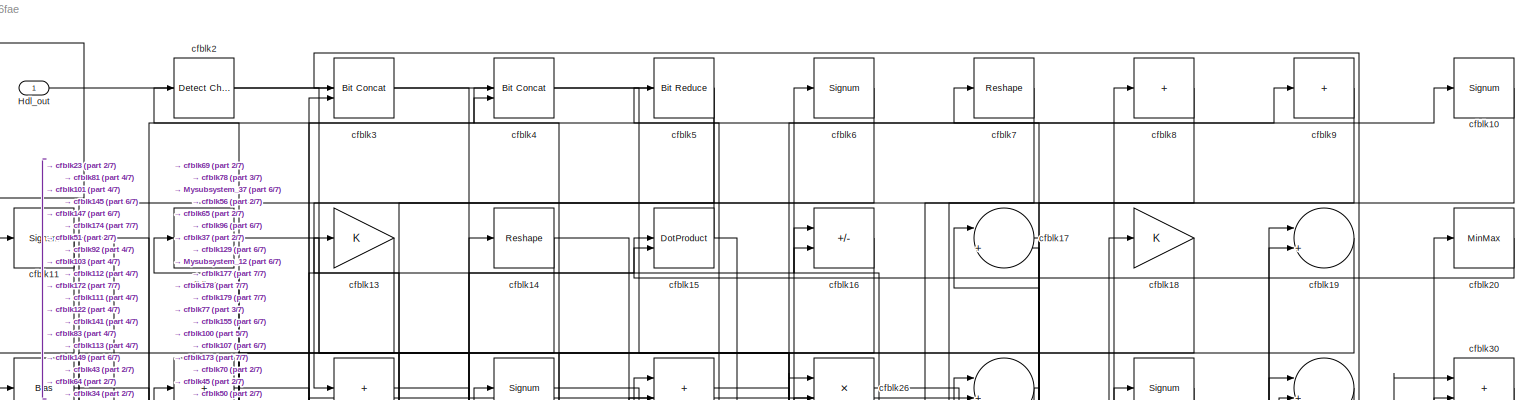
[diagram: root canvas - part 1/7, full width, top band]
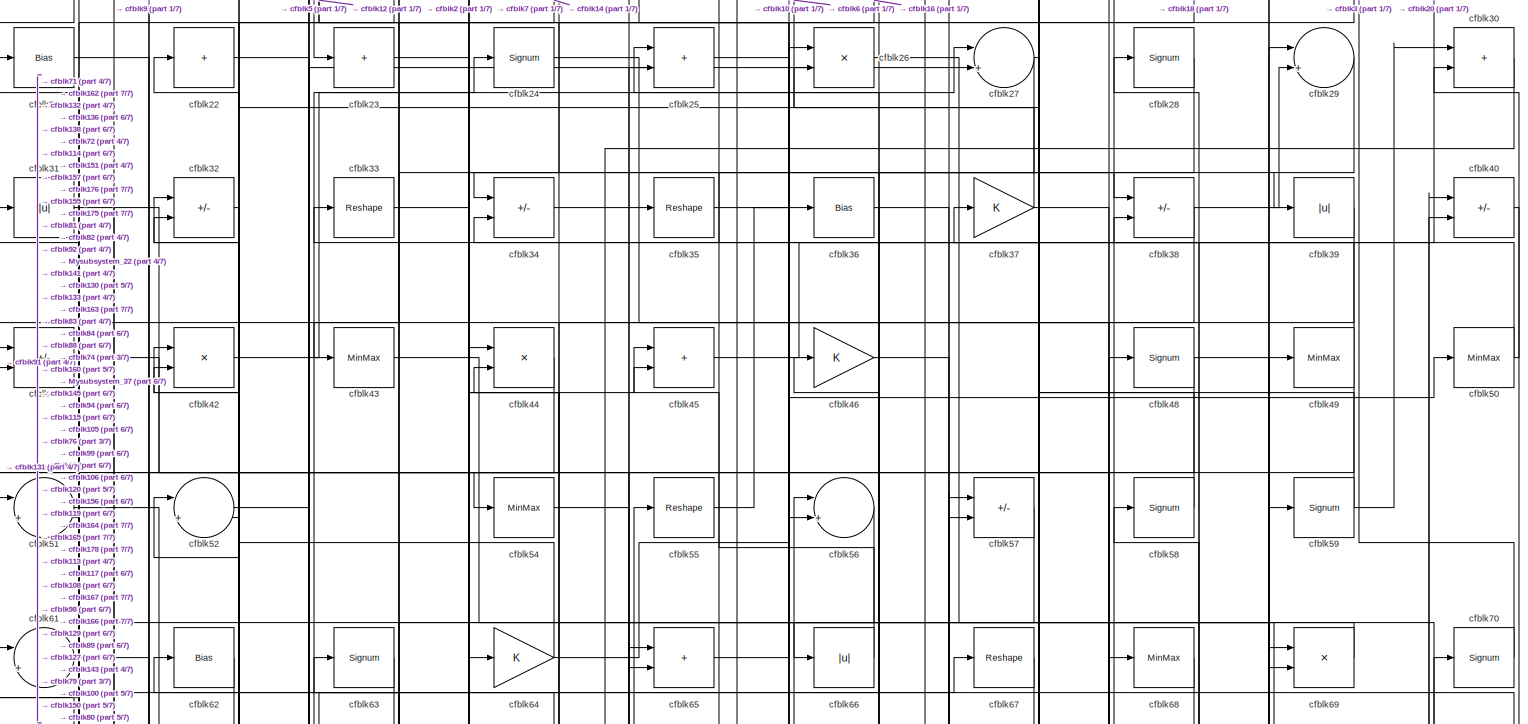
[diagram: root canvas - part 2/7, full width, top band]
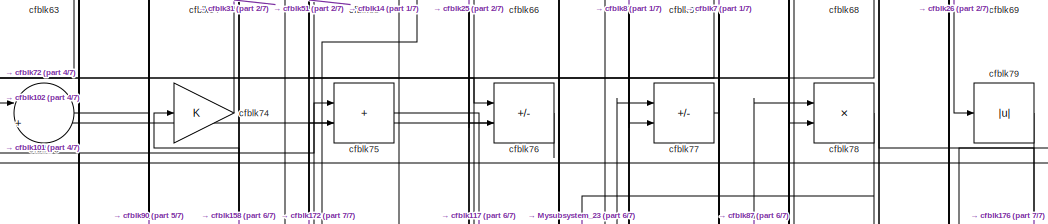
[diagram: root canvas - part 3/7, central region]
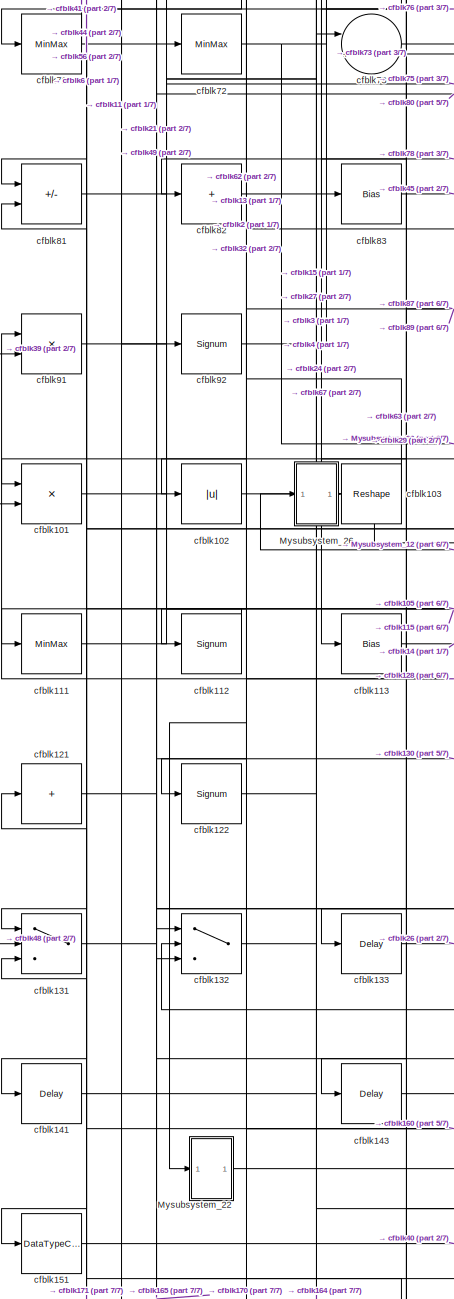
[diagram: root canvas - part 4/7, middle left region]
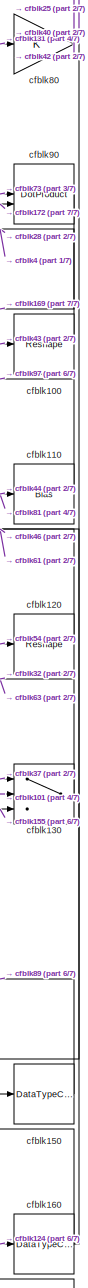
[diagram: root canvas - part 5/7, middle right region]
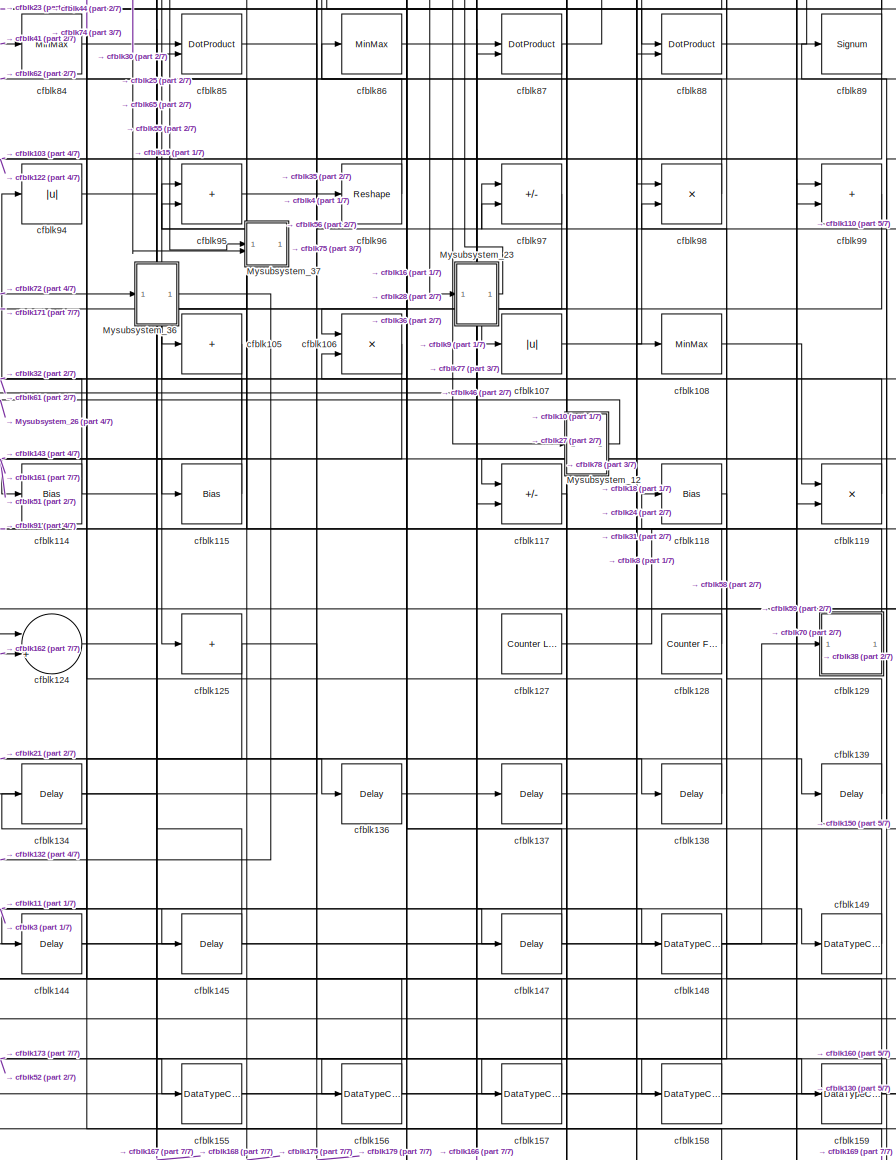
[diagram: root canvas - part 6/7, bottom center region]
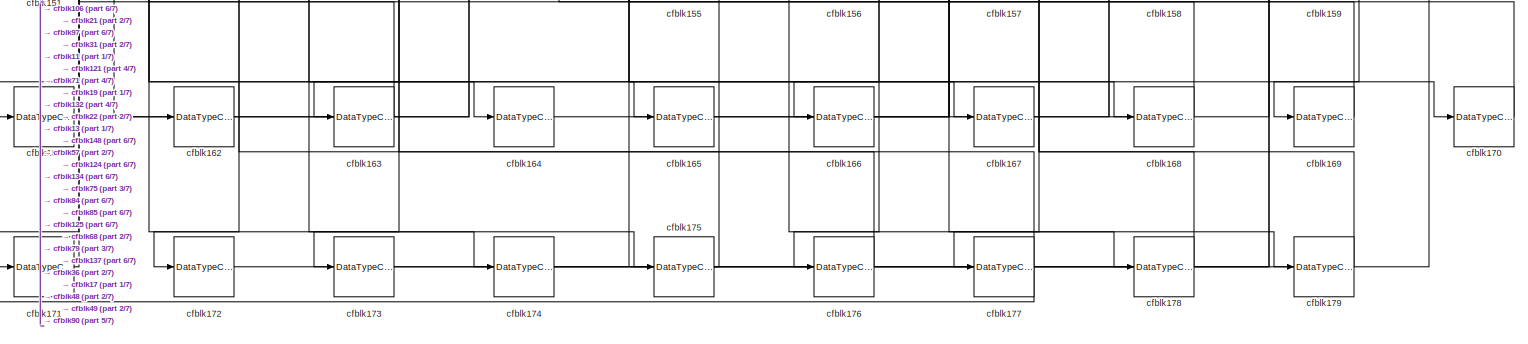
[diagram: root canvas - part 7/7, full width, bottom band]
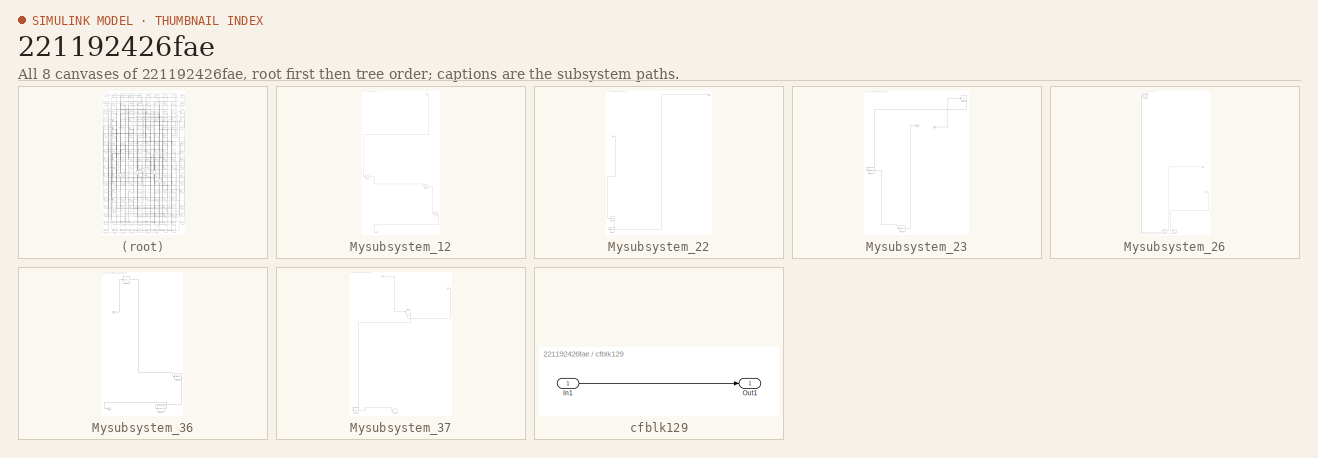
[diagram: thumbnail index - all 8 canvases of the model, root first then tree order]
MODEL slx_221192426fae
KIND model
CONFIG AbsTol = auto
CONFIG EnableMultiTasking = off
CONFIG FixedStep = auto
CONFIG MaxStep = auto
CONFIG MinStep = auto
CONFIG RelTol = 1e-3
CONFIG SampleTimeConstraint = Unconstrained
CONFIG SolverName = VariableStepAuto
CONFIG StartTime = 0.0
CONFIG StopTime = 10.0
BLOCK [Outport] Hdl_out
  OutDataTypeStr = uint8
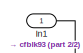
[diagram: Mysubsystem_12 - part 1/2, top right region]
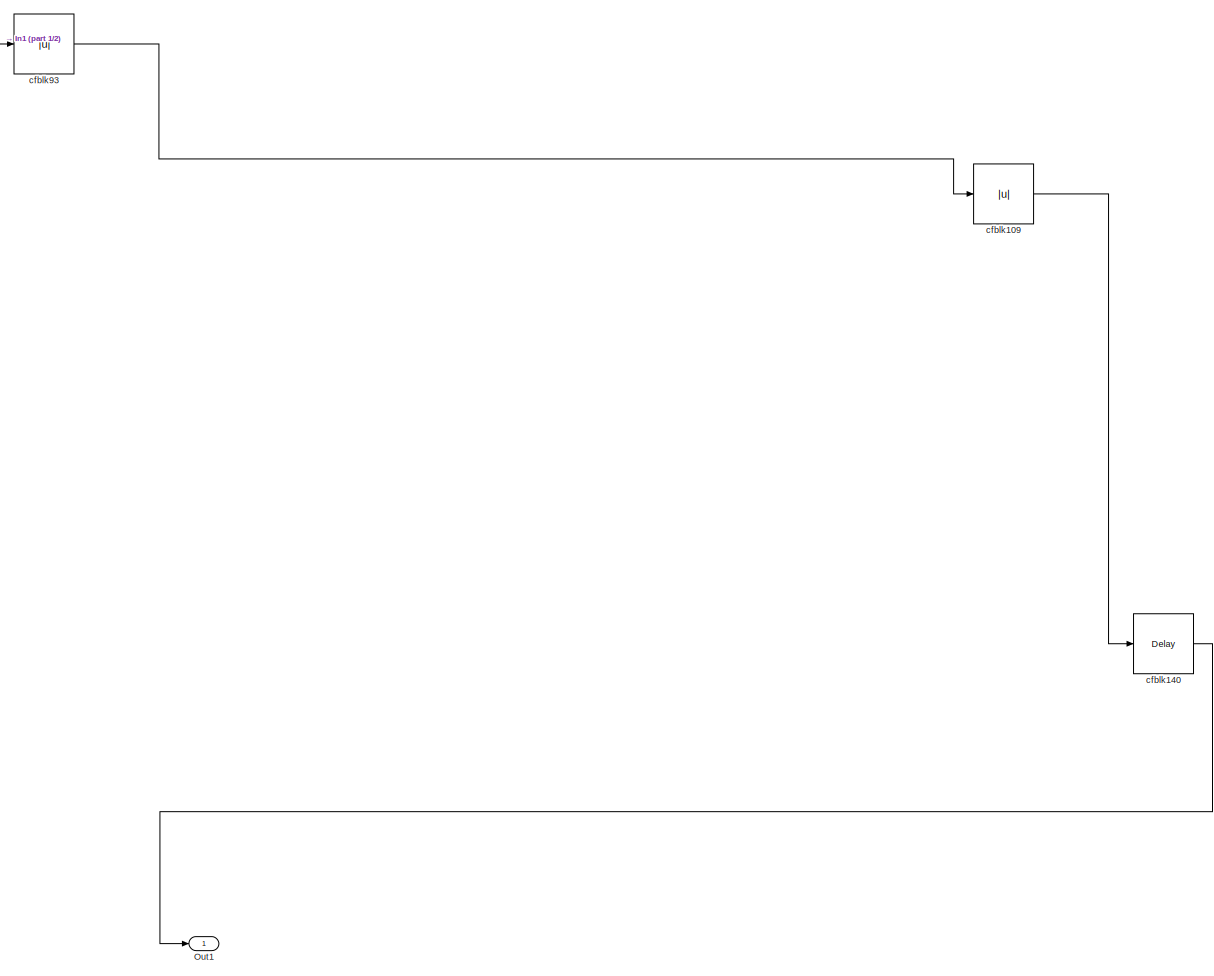
[diagram: Mysubsystem_12 - part 2/2, full width, bottom band]
BLOCK [SubSystem] Mysubsystem_12
  RTWFcnName = Mysubsystem_12
  RTWFcnNameOpts = User specified
  RTWFileNameOpts = Use function name
  RTWSystemCode = Reusable function
  TreatAsAtomicUnit = on
BLOCK [Inport] Mysubsystem_12/In1
BLOCK [Outport] Mysubsystem_12/Out1
BLOCK [Abs] Mysubsystem_12/cfblk109
  SaturateOnIntegerOverflow = off
BLOCK [Delay] Mysubsystem_12/cfblk140
  InputPortMap = u0
  SampleTime = 1
BLOCK [Abs] Mysubsystem_12/cfblk93
  SaturateOnIntegerOverflow = off
BLOCK [SubSystem] Mysubsystem_22
  RTWFcnName = Mysubsystem_22
  RTWFcnNameOpts = User specified
  RTWFileNameOpts = Use function name
  RTWSystemCode = Reusable function
  TreatAsAtomicUnit = on
BLOCK [Inport] Mysubsystem_22/In1
BLOCK [Outport] Mysubsystem_22/Out1
BLOCK [Delay] Mysubsystem_22/cfblk142
  InputPortMap = u0
  SampleTime = 1
BLOCK [DataTypeConversion] Mysubsystem_22/cfblk152
  OutDataTypeStr = uint8
  RndMeth = Floor
  SaturateOnIntegerOverflow = off
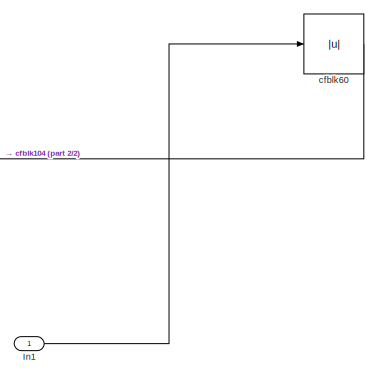
[diagram: Mysubsystem_23 - part 1/2, top right region]
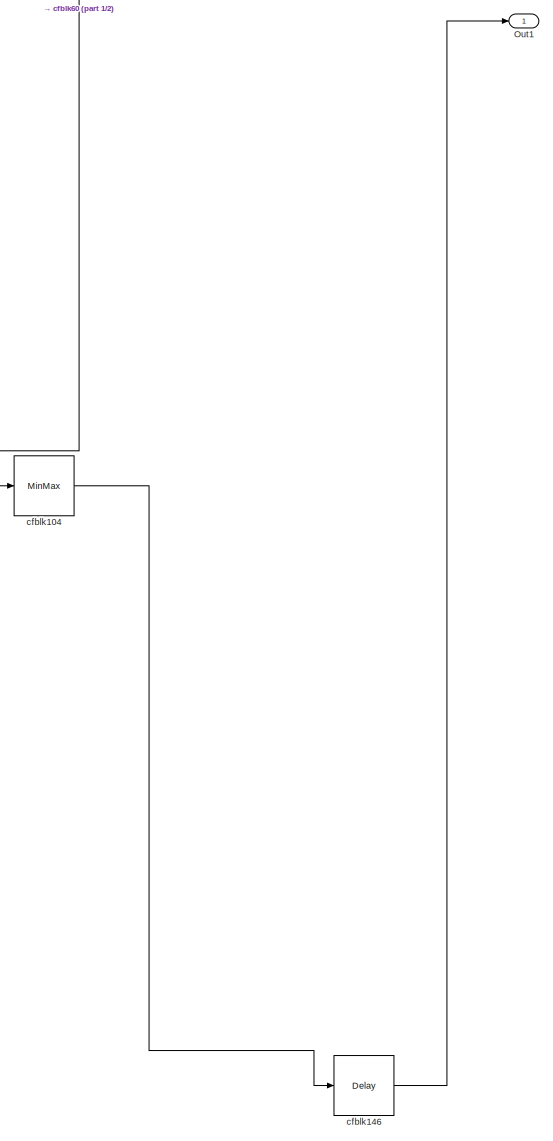
[diagram: Mysubsystem_23 - part 2/2, left side, full height]
BLOCK [SubSystem] Mysubsystem_23
  RTWFcnName = Mysubsystem_23
  RTWFcnNameOpts = User specified
  RTWFileNameOpts = Use function name
  RTWSystemCode = Reusable function
  TreatAsAtomicUnit = on
BLOCK [Inport] Mysubsystem_23/In1
BLOCK [Outport] Mysubsystem_23/Out1
BLOCK [MinMax] Mysubsystem_23/cfblk104
BLOCK [Delay] Mysubsystem_23/cfblk146
  InputPortMap = u0
  SampleTime = 1
BLOCK [Abs] Mysubsystem_23/cfblk60
  SaturateOnIntegerOverflow = off
BLOCK [SubSystem] Mysubsystem_26
  RTWFcnName = Mysubsystem_26
  RTWFcnNameOpts = User specified
  RTWFileNameOpts = Use function name
  RTWSystemCode = Reusable function
  TreatAsAtomicUnit = on
BLOCK [Inport] Mysubsystem_26/In1
BLOCK [Outport] Mysubsystem_26/Out1
BLOCK [ArithShift] Mysubsystem_26/cfblk1
  BitShiftNumber = 8
  InputPortMap = u0
BLOCK [DataTypeConversion] Mysubsystem_26/cfblk153
  OutDataTypeStr = uint8
  RndMeth = Floor
  SaturateOnIntegerOverflow = off
BLOCK [DataTypeConversion] Mysubsystem_26/cfblk154
  OutDataTypeStr = uint8
  RndMeth = Floor
  SaturateOnIntegerOverflow = off
BLOCK [SubSystem] Mysubsystem_36
  RTWFcnName = Mysubsystem_36
  RTWFcnNameOpts = User specified
  RTWFileNameOpts = Use function name
  RTWSystemCode = Reusable function
  TreatAsAtomicUnit = on
BLOCK [Inport] Mysubsystem_36/In1
BLOCK [Outport] Mysubsystem_36/Out1
BLOCK [MinMax] Mysubsystem_36/cfblk116
BLOCK [Delay] Mysubsystem_36/cfblk135
  InputPortMap = u0
  SampleTime = 1
BLOCK [Abs] Mysubsystem_36/cfblk53
  SaturateOnIntegerOverflow = off
BLOCK [SubSystem] Mysubsystem_37
  RTWFcnName = Mysubsystem_37
  RTWFcnNameOpts = User specified
  RTWFileNameOpts = Use function name
  RTWSystemCode = Reusable function
  TreatAsAtomicUnit = on
BLOCK [Inport] Mysubsystem_37/In1
BLOCK [Inport] Mysubsystem_37/In2
  Port = 2
BLOCK [Abs] Mysubsystem_37/cfblk123
  SaturateOnIntegerOverflow = off
BLOCK [Terminator] Mysubsystem_37/cfblk126
BLOCK [Sum] Mysubsystem_37/cfblk47
  Inputs = |++
BLOCK [Signum] cfblk10
BLOCK [Reshape] cfblk100
BLOCK [Product] cfblk101
  Inputs = */
  OutDataTypeStr = uint8
  RndMeth = Zero
  SaturateOnIntegerOverflow = on
BLOCK [Abs] cfblk102
  OutDataTypeStr = uint8
  SaturateOnIntegerOverflow = off
BLOCK [Reshape] cfblk103
BLOCK [Sum] cfblk105
  IconShape = rectangular
  Inputs = +
  OutDataTypeStr = uint8
BLOCK [Product] cfblk106
  Inputs = */
  OutDataTypeStr = uint8
  RndMeth = Zero
  SaturateOnIntegerOverflow = on
BLOCK [Abs] cfblk107
  OutDataTypeStr = uint8
  SaturateOnIntegerOverflow = off
BLOCK [MinMax] cfblk108
  OutDataTypeStr = uint8
BLOCK [Signum] cfblk11
BLOCK [Bias] cfblk110
  Bias = 0.0
  SaturateOnIntegerOverflow = off
BLOCK [MinMax] cfblk111
  OutDataTypeStr = uint8
BLOCK [Signum] cfblk112
BLOCK [Bias] cfblk113
  Bias = 0.0
  SaturateOnIntegerOverflow = off
BLOCK [Bias] cfblk114
  Bias = 0.0
  SaturateOnIntegerOverflow = off
BLOCK [Bias] cfblk115
  Bias = 0.0
  SaturateOnIntegerOverflow = off
BLOCK [Sum] cfblk117
  IconShape = rectangular
  Inputs = +-
  OutDataTypeStr = uint8
BLOCK [Bias] cfblk118
  Bias = 0.0
  SaturateOnIntegerOverflow = off
BLOCK [Product] cfblk119
  Inputs = */
  OutDataTypeStr = uint8
  RndMeth = Zero
  SaturateOnIntegerOverflow = on
BLOCK [Sum] cfblk12
  IconShape = rectangular
  Inputs = +
  OutDataTypeStr = uint8
BLOCK [Reshape] cfblk120
BLOCK [Sum] cfblk121
  IconShape = rectangular
  Inputs = +
  OutDataTypeStr = uint8
BLOCK [Signum] cfblk122
BLOCK [Sum] cfblk124
  Inputs = |++
  OutDataTypeStr = uint8
BLOCK [Sum] cfblk125
  IconShape = rectangular
  Inputs = +
  OutDataTypeStr = uint8
BLOCK [Reference] cfblk127  REF=hdlsllib/Sources/Counter
Limited
  SourceBlock = hdlsllib/Sources/Counter\nLimited
  SourceType = Counter Limited
BLOCK [Reference] cfblk128  REF=hdlsllib/Sources/Counter
Free-Running
  SourceBlock = hdlsllib/Sources/Counter\nFree-Running
  SourceType = Counter Free-Running
BLOCK [SubSystem] cfblk129
  LibrarySourceBlock = hdlsllib/Ports &\nSubsystems/Subsystem
BLOCK [Inport] cfblk129/In1
BLOCK [Outport] cfblk129/Out1
BLOCK [Gain] cfblk13
  OutDataTypeStr = uint8
BLOCK [Switch] cfblk130
  InputSameDT = off
  OutDataTypeStr = uint8
  SaturateOnIntegerOverflow = off
BLOCK [Switch] cfblk131
  InputSameDT = off
  OutDataTypeStr = uint8
  SaturateOnIntegerOverflow = off
BLOCK [Switch] cfblk132
  InputSameDT = off
  OutDataTypeStr = uint8
  SaturateOnIntegerOverflow = off
BLOCK [Delay] cfblk133
  InputPortMap = u0
  SampleTime = 1
BLOCK [Delay] cfblk134
  InputPortMap = u0
  SampleTime = 1
BLOCK [Delay] cfblk136
  InputPortMap = u0
  SampleTime = 1
BLOCK [Delay] cfblk137
  InputPortMap = u0
  SampleTime = 1
BLOCK [Delay] cfblk138
  InputPortMap = u0
  SampleTime = 1
BLOCK [Delay] cfblk139
  InputPortMap = u0
  SampleTime = 1
BLOCK [Reshape] cfblk14
BLOCK [Delay] cfblk141
  InputPortMap = u0
  SampleTime = 1
BLOCK [Delay] cfblk143
  InputPortMap = u0
  SampleTime = 1
BLOCK [Delay] cfblk144
  InputPortMap = u0
  SampleTime = 1
BLOCK [Delay] cfblk145
  InputPortMap = u0
  SampleTime = 1
BLOCK [Delay] cfblk147
  InputPortMap = u0
  SampleTime = 1
BLOCK [DataTypeConversion] cfblk148
  OutDataTypeStr = uint8
  RndMeth = Floor
  SaturateOnIntegerOverflow = off
BLOCK [DataTypeConversion] cfblk149
  OutDataTypeStr = uint8
  RndMeth = Floor
  SaturateOnIntegerOverflow = off
BLOCK [DotProduct] cfblk15
  OutDataTypeStr = uint8
BLOCK [DataTypeConversion] cfblk150
  OutDataTypeStr = uint8
  RndMeth = Floor
  SaturateOnIntegerOverflow = off
BLOCK [DataTypeConversion] cfblk151
  OutDataTypeStr = uint8
  RndMeth = Floor
  SaturateOnIntegerOverflow = off
BLOCK [DataTypeConversion] cfblk155
  OutDataTypeStr = uint8
  RndMeth = Floor
  SaturateOnIntegerOverflow = off
BLOCK [DataTypeConversion] cfblk156
  OutDataTypeStr = uint8
  RndMeth = Floor
  SaturateOnIntegerOverflow = off
BLOCK [DataTypeConversion] cfblk157
  OutDataTypeStr = uint8
  RndMeth = Floor
  SaturateOnIntegerOverflow = off
BLOCK [DataTypeConversion] cfblk158
  OutDataTypeStr = uint8
  RndMeth = Floor
  SaturateOnIntegerOverflow = off
BLOCK [DataTypeConversion] cfblk159
  OutDataTypeStr = uint8
  RndMeth = Floor
  SaturateOnIntegerOverflow = off
BLOCK [Sum] cfblk16
  IconShape = rectangular
  Inputs = +-
  OutDataTypeStr = uint8
BLOCK [DataTypeConversion] cfblk160
  OutDataTypeStr = uint8
  RndMeth = Floor
  SaturateOnIntegerOverflow = off
BLOCK [DataTypeConversion] cfblk161
  OutDataTypeStr = uint8
  RndMeth = Floor
  SaturateOnIntegerOverflow = off
BLOCK [DataTypeConversion] cfblk162
  OutDataTypeStr = uint8
  RndMeth = Floor
  SaturateOnIntegerOverflow = off
BLOCK [DataTypeConversion] cfblk163
  OutDataTypeStr = uint8
  RndMeth = Floor
  SaturateOnIntegerOverflow = off
BLOCK [DataTypeConversion] cfblk164
  OutDataTypeStr = uint8
  RndMeth = Floor
  SaturateOnIntegerOverflow = off
BLOCK [DataTypeConversion] cfblk165
  OutDataTypeStr = uint8
  RndMeth = Floor
  SaturateOnIntegerOverflow = off
BLOCK [DataTypeConversion] cfblk166
  OutDataTypeStr = uint8
  RndMeth = Floor
  SaturateOnIntegerOverflow = off
BLOCK [DataTypeConversion] cfblk167
  OutDataTypeStr = uint8
  RndMeth = Floor
  SaturateOnIntegerOverflow = off
BLOCK [DataTypeConversion] cfblk168
  OutDataTypeStr = uint8
  RndMeth = Floor
  SaturateOnIntegerOverflow = off
BLOCK [DataTypeConversion] cfblk169
  OutDataTypeStr = uint8
  RndMeth = Floor
  SaturateOnIntegerOverflow = off
BLOCK [Sum] cfblk17
  Inputs = |++
  OutDataTypeStr = uint8
BLOCK [DataTypeConversion] cfblk170
  OutDataTypeStr = uint8
  RndMeth = Floor
  SaturateOnIntegerOverflow = off
BLOCK [DataTypeConversion] cfblk171
  OutDataTypeStr = uint8
  RndMeth = Floor
  SaturateOnIntegerOverflow = off
BLOCK [DataTypeConversion] cfblk172
  OutDataTypeStr = uint8
  RndMeth = Floor
  SaturateOnIntegerOverflow = off
BLOCK [DataTypeConversion] cfblk173
  OutDataTypeStr = uint8
  RndMeth = Floor
  SaturateOnIntegerOverflow = off
BLOCK [DataTypeConversion] cfblk174
  OutDataTypeStr = uint8
  RndMeth = Floor
  SaturateOnIntegerOverflow = off
BLOCK [DataTypeConversion] cfblk175
  OutDataTypeStr = uint8
  RndMeth = Floor
  SaturateOnIntegerOverflow = off
BLOCK [DataTypeConversion] cfblk176
  OutDataTypeStr = uint8
  RndMeth = Floor
  SaturateOnIntegerOverflow = off
BLOCK [DataTypeConversion] cfblk177
  OutDataTypeStr = uint8
  RndMeth = Floor
  SaturateOnIntegerOverflow = off
BLOCK [DataTypeConversion] cfblk178
  OutDataTypeStr = uint8
  RndMeth = Floor
  SaturateOnIntegerOverflow = off
BLOCK [DataTypeConversion] cfblk179
  OutDataTypeStr = uint8
  RndMeth = Floor
  SaturateOnIntegerOverflow = off
BLOCK [Gain] cfblk18
  OutDataTypeStr = uint8
BLOCK [Sum] cfblk19
  Inputs = |++
  OutDataTypeStr = uint8
BLOCK [Reference] cfblk2  REF=simulink/Logic and Bit
Operations/Detect
Change
  LibrarySourceBlock = hdlsllib/Logic and Bit\nOperations/Detect\nChange
  SourceBlock = simulink/Logic and Bit\nOperations/Detect\nChange
  SourceType = Detect Change
BLOCK [MinMax] cfblk20
  OutDataTypeStr = uint8
BLOCK [Bias] cfblk21
  Bias = 0.0
  SaturateOnIntegerOverflow = off
BLOCK [Sum] cfblk22
  IconShape = rectangular
  Inputs = +
  OutDataTypeStr = uint8
BLOCK [Sum] cfblk23
  IconShape = rectangular
  Inputs = +
  OutDataTypeStr = uint8
BLOCK [Signum] cfblk24
BLOCK [Sum] cfblk25
  IconShape = rectangular
  OutDataTypeStr = uint8
BLOCK [Product] cfblk26
  Inputs = */
  OutDataTypeStr = uint8
  RndMeth = Zero
  SaturateOnIntegerOverflow = on
BLOCK [Sum] cfblk27
  Inputs = |++
  OutDataTypeStr = uint8
BLOCK [Signum] cfblk28
BLOCK [Sum] cfblk29
  Inputs = |++
  OutDataTypeStr = uint8
BLOCK [Reference] cfblk3  REF=hdlsllib/Logic and Bit
Operations/Bit Concat
  SourceBlock = hdlsllib/Logic and Bit\nOperations/Bit Concat
  SourceType = Bit Concat
BLOCK [Sum] cfblk30
  IconShape = rectangular
  OutDataTypeStr = uint8
BLOCK [Abs] cfblk31
  OutDataTypeStr = uint8
  SaturateOnIntegerOverflow = off
BLOCK [Sum] cfblk32
  IconShape = rectangular
  Inputs = +-
  OutDataTypeStr = uint8
BLOCK [Reshape] cfblk33
BLOCK [Sum] cfblk34
  IconShape = rectangular
  Inputs = +-
  OutDataTypeStr = uint8
BLOCK [Reshape] cfblk35
BLOCK [Bias] cfblk36
  Bias = 0.0
  SaturateOnIntegerOverflow = off
BLOCK [Gain] cfblk37
  OutDataTypeStr = uint8
BLOCK [Sum] cfblk38
  IconShape = rectangular
  Inputs = +-
  OutDataTypeStr = uint8
BLOCK [Abs] cfblk39
  OutDataTypeStr = uint8
  SaturateOnIntegerOverflow = off
BLOCK [Reference] cfblk4  REF=hdlsllib/Logic and Bit
Operations/Bit Concat
  SourceBlock = hdlsllib/Logic and Bit\nOperations/Bit Concat
  SourceType = Bit Concat
BLOCK [Sum] cfblk40
  IconShape = rectangular
  Inputs = +-
  OutDataTypeStr = uint8
BLOCK [Sum] cfblk41
  IconShape = rectangular
  Inputs = +-
  OutDataTypeStr = uint8
BLOCK [Product] cfblk42
  Inputs = */
  OutDataTypeStr = uint8
  RndMeth = Zero
  SaturateOnIntegerOverflow = on
BLOCK [MinMax] cfblk43
  OutDataTypeStr = uint8
BLOCK [Product] cfblk44
  Inputs = */
  OutDataTypeStr = uint8
  RndMeth = Zero
  SaturateOnIntegerOverflow = on
BLOCK [Sum] cfblk45
  IconShape = rectangular
  OutDataTypeStr = uint8
BLOCK [Gain] cfblk46
  OutDataTypeStr = uint8
BLOCK [Signum] cfblk48
BLOCK [MinMax] cfblk49
  OutDataTypeStr = uint8
BLOCK [Reference] cfblk5  REF=hdlsllib/Logic and Bit
Operations/Bit Reduce
  SourceBlock = hdlsllib/Logic and Bit\nOperations/Bit Reduce
  SourceType = Bit Reduce
BLOCK [MinMax] cfblk50
  OutDataTypeStr = uint8
BLOCK [Sum] cfblk51
  Inputs = |++
  OutDataTypeStr = uint8
BLOCK [Sum] cfblk52
  Inputs = |++
  OutDataTypeStr = uint8
BLOCK [MinMax] cfblk54
  OutDataTypeStr = uint8
BLOCK [Reshape] cfblk55
BLOCK [Sum] cfblk56
  Inputs = |++
  OutDataTypeStr = uint8
BLOCK [Sum] cfblk57
  IconShape = rectangular
  Inputs = +-
  OutDataTypeStr = uint8
BLOCK [Signum] cfblk58
BLOCK [Signum] cfblk59
BLOCK [Signum] cfblk6
BLOCK [Sum] cfblk61
  Inputs = |++
  OutDataTypeStr = uint8
BLOCK [Bias] cfblk62
  Bias = 0.0
  SaturateOnIntegerOverflow = off
BLOCK [Signum] cfblk63
BLOCK [Gain] cfblk64
  OutDataTypeStr = uint8
BLOCK [Sum] cfblk65
  IconShape = rectangular
  OutDataTypeStr = uint8
BLOCK [Abs] cfblk66
  OutDataTypeStr = uint8
  SaturateOnIntegerOverflow = off
BLOCK [Reshape] cfblk67
BLOCK [MinMax] cfblk68
  OutDataTypeStr = uint8
BLOCK [Product] cfblk69
  Inputs = */
  OutDataTypeStr = uint8
  RndMeth = Zero
  SaturateOnIntegerOverflow = on
BLOCK [Reshape] cfblk7
BLOCK [Signum] cfblk70
BLOCK [MinMax] cfblk71
  OutDataTypeStr = uint8
BLOCK [MinMax] cfblk72
  OutDataTypeStr = uint8
BLOCK [Sum] cfblk73
  Inputs = |++
  OutDataTypeStr = uint8
BLOCK [Gain] cfblk74
  OutDataTypeStr = uint8
BLOCK [Sum] cfblk75
  IconShape = rectangular
  OutDataTypeStr = uint8
BLOCK [Sum] cfblk76
  IconShape = rectangular
  Inputs = +-
  OutDataTypeStr = uint8
BLOCK [Sum] cfblk77
  IconShape = rectangular
  Inputs = +-
  OutDataTypeStr = uint8
BLOCK [Product] cfblk78
  Inputs = */
  OutDataTypeStr = uint8
  RndMeth = Zero
  SaturateOnIntegerOverflow = on
BLOCK [Abs] cfblk79
  OutDataTypeStr = uint8
  SaturateOnIntegerOverflow = off
BLOCK [Sum] cfblk8
  IconShape = rectangular
  Inputs = +
  OutDataTypeStr = uint8
BLOCK [Gain] cfblk80
  OutDataTypeStr = uint8
BLOCK [Sum] cfblk81
  IconShape = rectangular
  Inputs = +-
  OutDataTypeStr = uint8
BLOCK [Sum] cfblk82
  IconShape = rectangular
  Inputs = +
  OutDataTypeStr = uint8
BLOCK [Bias] cfblk83
  Bias = 0.0
  SaturateOnIntegerOverflow = off
BLOCK [MinMax] cfblk84
  OutDataTypeStr = uint8
BLOCK [DotProduct] cfblk85
  OutDataTypeStr = uint8
BLOCK [MinMax] cfblk86
  OutDataTypeStr = uint8
BLOCK [DotProduct] cfblk87
  OutDataTypeStr = uint8
BLOCK [DotProduct] cfblk88
  OutDataTypeStr = uint8
BLOCK [Signum] cfblk89
BLOCK [Sum] cfblk9
  IconShape = rectangular
  Inputs = +
  OutDataTypeStr = uint8
BLOCK [DotProduct] cfblk90
  OutDataTypeStr = uint8
BLOCK [Product] cfblk91
  Inputs = */
  OutDataTypeStr = uint8
  RndMeth = Zero
  SaturateOnIntegerOverflow = on
BLOCK [Signum] cfblk92
BLOCK [Abs] cfblk94
  OutDataTypeStr = uint8
  SaturateOnIntegerOverflow = off
BLOCK [Sum] cfblk95
  IconShape = rectangular
  OutDataTypeStr = uint8
BLOCK [Reshape] cfblk96
BLOCK [Sum] cfblk97
  IconShape = rectangular
  Inputs = +-
  OutDataTypeStr = uint8
BLOCK [Product] cfblk98
  Inputs = */
  OutDataTypeStr = uint8
  RndMeth = Zero
  SaturateOnIntegerOverflow = on
BLOCK [Sum] cfblk99
  IconShape = rectangular
  OutDataTypeStr = uint8
LINE Mysubsystem_12/In1:1 -> Mysubsystem_12/cfblk93:1
LINE Mysubsystem_12/cfblk109:1 -> Mysubsystem_12/cfblk140:1
LINE Mysubsystem_12/cfblk140:1 -> Mysubsystem_12/Out1:1
LINE Mysubsystem_12/cfblk93:1 -> Mysubsystem_12/cfblk109:1
LINE Mysubsystem_12:1 -> Mysubsystem_26:1
LINE Mysubsystem_22/In1:1 -> Mysubsystem_22/cfblk142:1
LINE Mysubsystem_22/cfblk142:1 -> Mysubsystem_22/cfblk152:1
LINE Mysubsystem_22/cfblk152:1 -> Mysubsystem_22/Out1:1
LINE Mysubsystem_22:1 -> cfblk40:2
LINE Mysubsystem_23/In1:1 -> Mysubsystem_23/cfblk60:1
LINE Mysubsystem_23/cfblk104:1 -> Mysubsystem_23/cfblk146:1
LINE Mysubsystem_23/cfblk146:1 -> Mysubsystem_23/Out1:1
LINE Mysubsystem_23/cfblk60:1 -> Mysubsystem_23/cfblk104:1
LINE Mysubsystem_23:1 -> cfblk77:1
LINE Mysubsystem_26/In1:1 -> Mysubsystem_26/cfblk154:1
LINE Mysubsystem_26/cfblk153:1 -> Mysubsystem_26/Out1:1
LINE Mysubsystem_26/cfblk154:1 -> Mysubsystem_26/cfblk1:1
LINE Mysubsystem_26/cfblk1:1 -> Mysubsystem_26/cfblk153:1
LINE Mysubsystem_26:1 -> cfblk87:1
LINE Mysubsystem_36/In1:1 -> Mysubsystem_36/cfblk53:1
LINE Mysubsystem_36/cfblk116:1 -> Mysubsystem_36/cfblk135:1
LINE Mysubsystem_36/cfblk135:1 -> Mysubsystem_36/Out1:1
LINE Mysubsystem_36/cfblk53:1 -> Mysubsystem_36/cfblk116:1
LINE Mysubsystem_36:1 -> cfblk132:2
LINE Mysubsystem_37/In1:1 -> Mysubsystem_37/cfblk47:1
LINE Mysubsystem_37/In2:1 -> Mysubsystem_37/cfblk47:2
LINE Mysubsystem_37/cfblk123:1 -> Mysubsystem_37/cfblk126:1
LINE Mysubsystem_37/cfblk47:1 -> Mysubsystem_37/cfblk123:1
NET cfblk100:1 -> cfblk28:1, cfblk4:2
NET cfblk101:1 -> cfblk130:2, cfblk75:1
LINE cfblk102:1 -> cfblk73:1
LINE cfblk103:1 -> cfblk2:1
LINE cfblk105:1 -> cfblk143:1
LINE cfblk106:1 -> cfblk161:1
LINE cfblk107:1 -> cfblk8:1
LINE cfblk108:1 -> cfblk119:1
LINE cfblk10:1 -> cfblk107:1
LINE cfblk110:1 -> cfblk97:1
LINE cfblk111:1 -> cfblk4:1
LINE cfblk112:1 -> cfblk111:1
LINE cfblk113:1 -> cfblk14:1
NET cfblk114:1 -> cfblk139:1, cfblk32:1, cfblk61:2
LINE cfblk115:1 -> cfblk55:1
LINE cfblk117:1 -> cfblk157:1
LINE cfblk118:1 -> cfblk158:1
LINE cfblk119:1 -> cfblk94:1
NET cfblk11:1 -> cfblk101:2, cfblk145:1, cfblk147:1, cfblk174:1, cfblk92:1
NET cfblk120:1 -> cfblk46:1, cfblk61:1
LINE cfblk121:1 -> cfblk170:1
LINE cfblk122:1 -> cfblk15:1
LINE cfblk124:1 -> cfblk160:1
NET cfblk125:1 -> cfblk144:1, cfblk179:1
LINE cfblk127:1 -> cfblk59:1
NET cfblk128:1 -> cfblk91:1, cfblk95:2
LINE cfblk129/In1:1 -> cfblk129/Out1:1
NET cfblk129:1 -> cfblk16:2, cfblk58:1, cfblk95:1
LINE cfblk12:1 -> cfblk56:2
NET cfblk130:1 -> cfblk32:2, cfblk63:1
LINE cfblk131:1 -> cfblk80:1
LINE cfblk132:1 -> cfblk164:1
LINE cfblk133:1 -> cfblk26:1
LINE cfblk134:1 -> cfblk168:1
LINE cfblk136:1 -> cfblk87:2
LINE cfblk137:1 -> cfblk88:2
LINE cfblk138:1 -> cfblk44:1
LINE cfblk139:1 -> cfblk98:2
LINE cfblk13:1 -> cfblk112:1
LINE cfblk141:1 -> cfblk3:2
LINE cfblk143:1 -> cfblk29:1
LINE cfblk144:1 -> cfblk99:1
LINE cfblk145:1 -> cfblk65:1
LINE cfblk147:1 -> cfblk106:2
NET cfblk148:1 -> cfblk129:1, cfblk173:1
LINE cfblk149:1 -> cfblk86:1
NET cfblk14:1 -> cfblk69:2, cfblk78:2, cfblk83:1
LINE cfblk150:1 -> cfblk89:1
LINE cfblk151:1 -> cfblk40:1
NET cfblk155:1 -> cfblk130:3, cfblk18:1
LINE cfblk156:1 -> cfblk52:1
LINE cfblk157:1 -> cfblk52:2
LINE cfblk158:1 -> cfblk74:1
LINE cfblk159:1 -> cfblk118:1
NET cfblk15:1 -> Hdl_out:1, Mysubsystem_37:1
NET cfblk160:1 -> cfblk110:1, cfblk131:3, cfblk44:2, cfblk81:2
LINE cfblk161:1 -> cfblk124:1
LINE cfblk162:1 -> cfblk124:2
LINE cfblk163:1 -> cfblk21:1
LINE cfblk164:1 -> cfblk57:1
LINE cfblk165:1 -> cfblk57:2
NET cfblk166:1 -> cfblk137:1, cfblk48:1, cfblk49:1
LINE cfblk167:1 -> cfblk68:1
LINE cfblk168:1 -> cfblk85:1
LINE cfblk169:1 -> cfblk134:1
LINE cfblk16:1 -> cfblk34:1
LINE cfblk170:1 -> cfblk132:1
LINE cfblk171:1 -> cfblk121:1
NET cfblk172:1 -> cfblk75:2, cfblk90:2
LINE cfblk173:1 -> cfblk19:1
LINE cfblk174:1 -> cfblk19:2
LINE cfblk175:1 -> cfblk85:2
LINE cfblk176:1 -> cfblk22:1
NET cfblk177:1 -> cfblk11:1, cfblk13:1
LINE cfblk178:1 -> cfblk17:1
LINE cfblk179:1 -> cfblk17:2
LINE cfblk17:1 -> cfblk177:1
LINE cfblk18:1 -> cfblk51:1
LINE cfblk19:1 -> cfblk172:1
LINE cfblk20:1 -> cfblk15:2
NET cfblk21:1 -> cfblk136:1, cfblk72:1
LINE cfblk22:1 -> cfblk175:1
LINE cfblk23:1 -> cfblk88:1
LINE cfblk24:1 -> cfblk108:1
LINE cfblk25:1 -> cfblk76:2
LINE cfblk26:1 -> cfblk79:1
NET cfblk27:1 -> cfblk105:1, cfblk117:1
LINE cfblk28:1 -> cfblk156:1
NET cfblk29:1 -> cfblk133:1, cfblk39:1
LINE cfblk2:1 -> cfblk64:1
LINE cfblk30:1 -> Mysubsystem_37:2
NET cfblk31:1 -> cfblk162:1, cfblk98:1
LINE cfblk32:1 -> cfblk82:1
LINE cfblk33:1 -> cfblk38:1
LINE cfblk34:1 -> cfblk35:1
LINE cfblk35:1 -> cfblk99:2
NET cfblk36:1 -> cfblk106:1, cfblk178:1
NET cfblk37:1 -> cfblk12:1, cfblk130:1, cfblk6:1
NET cfblk38:1 -> cfblk29:2, cfblk54:1
NET cfblk39:1 -> cfblk41:2, cfblk91:2
LINE cfblk3:1 -> cfblk149:1
LINE cfblk40:1 -> cfblk150:1
LINE cfblk41:1 -> cfblk84:1
LINE cfblk42:1 -> cfblk27:1
NET cfblk43:1 -> cfblk100:1, cfblk16:1
LINE cfblk44:1 -> cfblk71:1
LINE cfblk45:1 -> cfblk20:1
LINE cfblk46:1 -> cfblk119:2
NET cfblk48:1 -> cfblk131:2, cfblk65:2, cfblk69:1
NET cfblk49:1 -> cfblk132:3, cfblk37:1
LINE cfblk4:1 -> cfblk96:1
NET cfblk50:1 -> cfblk30:2, cfblk34:2, cfblk5:1
NET cfblk51:1 -> cfblk114:1, cfblk9:1
LINE cfblk52:1 -> cfblk155:1
LINE cfblk54:1 -> cfblk120:1
LINE cfblk55:1 -> cfblk36:1
LINE cfblk56:1 -> cfblk131:1
LINE cfblk57:1 -> cfblk163:1
LINE cfblk58:1 -> cfblk26:2
NET cfblk59:1 -> cfblk30:1, cfblk33:1
LINE cfblk5:1 -> cfblk23:1
LINE cfblk61:1 -> cfblk138:1
LINE cfblk62:1 -> cfblk151:1
NET cfblk63:1 -> Mysubsystem_22:1, cfblk141:1
NET cfblk64:1 -> cfblk42:2, cfblk50:1
LINE cfblk65:1 -> cfblk10:1
LINE cfblk66:1 -> cfblk45:1
LINE cfblk67:1 -> cfblk113:1
LINE cfblk68:1 -> cfblk166:1
LINE cfblk69:1 -> cfblk66:1
LINE cfblk6:1 -> cfblk81:1
LINE cfblk70:1 -> cfblk3:1
NET cfblk71:1 -> cfblk165:1, cfblk41:1
NET cfblk72:1 -> Mysubsystem_36:1, cfblk76:1
LINE cfblk73:1 -> cfblk90:1
NET cfblk74:1 -> cfblk31:1, cfblk51:2
LINE cfblk75:1 -> cfblk117:2
LINE cfblk76:1 -> cfblk73:2
LINE cfblk77:1 -> cfblk7:1
NET cfblk78:1 -> Mysubsystem_23:1, cfblk102:1
LINE cfblk79:1 -> cfblk176:1
LINE cfblk7:1 -> cfblk43:1
NET cfblk80:1 -> cfblk25:1, cfblk42:1
NET cfblk81:1 -> cfblk101:1, cfblk27:2
LINE cfblk82:1 -> cfblk24:1
LINE cfblk83:1 -> cfblk45:2
LINE cfblk84:1 -> cfblk167:1
LINE cfblk85:1 -> cfblk159:1
LINE cfblk86:1 -> cfblk148:1
NET cfblk87:1 -> cfblk103:1, cfblk78:1
LINE cfblk88:1 -> cfblk70:1
NET cfblk89:1 -> cfblk122:1, cfblk38:2
LINE cfblk8:1 -> cfblk77:2
LINE cfblk90:1 -> cfblk169:1
LINE cfblk91:1 -> cfblk115:1
LINE cfblk92:1 -> cfblk67:1
LINE cfblk94:1 -> cfblk25:2
LINE cfblk95:1 -> cfblk97:2
LINE cfblk96:1 -> cfblk56:1
LINE cfblk97:1 -> cfblk171:1
LINE cfblk98:1 -> cfblk62:1
LINE cfblk99:1 -> cfblk125:1
LINE cfblk9:1 -> Mysubsystem_12:1
note: NET lines group one-source signal fan-out (src -> all destinations, sorted); 1:1 wires keep LINE
